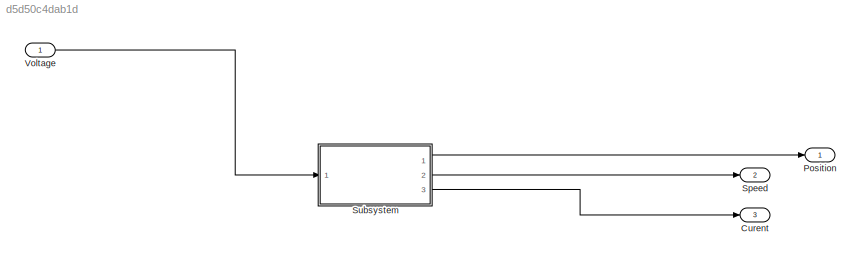
MODEL slx_d5d50c4dab1d
KIND model
CONFIG AbsTol = auto
CONFIG EnableMultiTasking = off
CONFIG FixedStep = auto
CONFIG MaxStep = auto
CONFIG MinStep = auto
CONFIG RelTol = 1e-3
CONFIG SampleTimeConstraint = Unconstrained
CONFIG SolverName = VariableStepAuto
CONFIG StartTime = 0.0
CONFIG StopTime = 10.0
BLOCK [Outport] Curent
  Port = 3
BLOCK [Outport] Position
BLOCK [Outport] Speed
  Port = 2
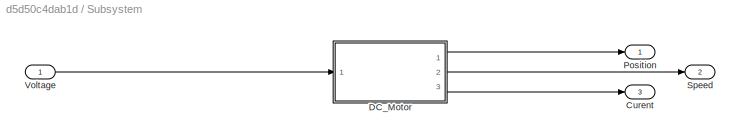
BLOCK [SubSystem] Subsystem
  Ports = [1, 3]
  RequestExecContextInheritance = off
BLOCK [Outport] Subsystem/Curent
  Port = 3
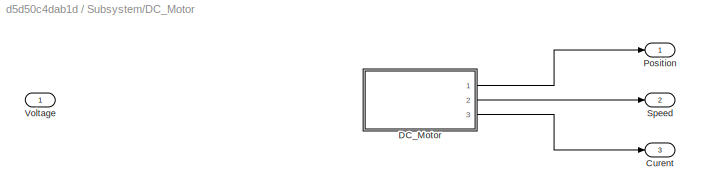
BLOCK [SubSystem] Subsystem/DC_Motor
  Ports = [1, 3]
  RequestExecContextInheritance = off
BLOCK [Outport] Subsystem/DC_Motor/Curent
  Port = 3
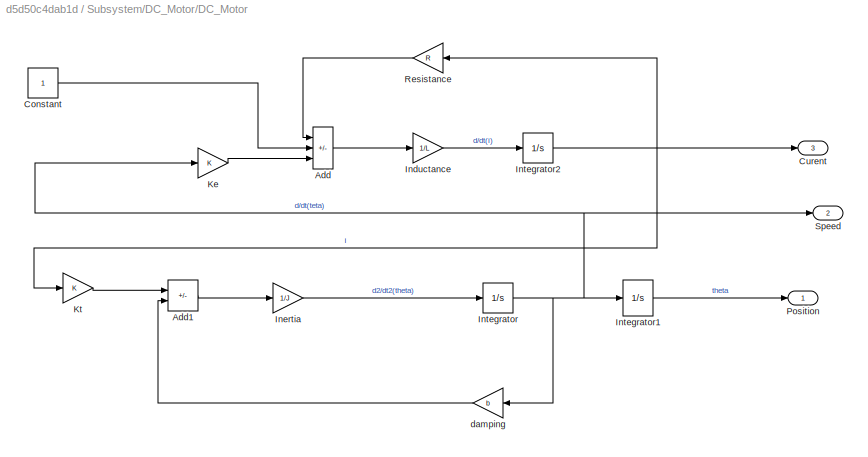
BLOCK [SubSystem] Subsystem/DC_Motor/DC_Motor
  Ports = [0, 3]
  RequestExecContextInheritance = off
BLOCK [Sum] Subsystem/DC_Motor/DC_Motor/Add
  IconShape = rectangular
  Inputs = -+-
  Ports = [3, 1]
BLOCK [Sum] Subsystem/DC_Motor/DC_Motor/Add1
  IconShape = rectangular
  Inputs = +-
  Ports = [2, 1]
BLOCK [Constant] Subsystem/DC_Motor/DC_Motor/Constant
BLOCK [Outport] Subsystem/DC_Motor/DC_Motor/Curent
  Port = 3
BLOCK [Gain] Subsystem/DC_Motor/DC_Motor/Inductance
  Gain = 1/L
BLOCK [Gain] Subsystem/DC_Motor/DC_Motor/Inertia
  Gain = 1/J
BLOCK [Integrator] Subsystem/DC_Motor/DC_Motor/Integrator
  Ports = [1, 1]
BLOCK [Integrator] Subsystem/DC_Motor/DC_Motor/Integrator1
  Ports = [1, 1]
BLOCK [Integrator] Subsystem/DC_Motor/DC_Motor/Integrator2
  Ports = [1, 1]
BLOCK [Gain] Subsystem/DC_Motor/DC_Motor/Ke
  Gain = K
BLOCK [Gain] Subsystem/DC_Motor/DC_Motor/Kt
  Gain = K
BLOCK [Outport] Subsystem/DC_Motor/DC_Motor/Position
BLOCK [Gain] Subsystem/DC_Motor/DC_Motor/Resistance
  Gain = R
  NameLocation = top
BLOCK [Outport] Subsystem/DC_Motor/DC_Motor/Speed
  Port = 2
BLOCK [Gain] Subsystem/DC_Motor/DC_Motor/damping
  Gain = b
  NameLocation = top
BLOCK [Outport] Subsystem/DC_Motor/Position
BLOCK [Outport] Subsystem/DC_Motor/Speed
  Port = 2
BLOCK [Inport] Subsystem/DC_Motor/Voltage
BLOCK [Outport] Subsystem/Position
BLOCK [Outport] Subsystem/Speed
  Port = 2
BLOCK [Inport] Subsystem/Voltage
BLOCK [Inport] Voltage
LINE Subsystem/DC_Motor/DC_Motor/Add1:1 -> Subsystem/DC_Motor/DC_Motor/Inertia:1
LINE Subsystem/DC_Motor/DC_Motor/Add:1 -> Subsystem/DC_Motor/DC_Motor/Inductance:1
LINE Subsystem/DC_Motor/DC_Motor/Constant:1 -> Subsystem/DC_Motor/DC_Motor/Add:2
LINE Subsystem/DC_Motor/DC_Motor/Inductance:1 -> Subsystem/DC_Motor/DC_Motor/Integrator2:1
LINE Subsystem/DC_Motor/DC_Motor/Inertia:1 -> Subsystem/DC_Motor/DC_Motor/Integrator:1
LINE Subsystem/DC_Motor/DC_Motor/Integrator1:1 -> Subsystem/DC_Motor/DC_Motor/Position:1
NET Subsystem/DC_Motor/DC_Motor/Integrator2:1 -> Subsystem/DC_Motor/DC_Motor/Curent:1, Subsystem/DC_Motor/DC_Motor/Kt:1, Subsystem/DC_Motor/DC_Motor/Resistance:1
NET Subsystem/DC_Motor/DC_Motor/Integrator:1 -> Subsystem/DC_Motor/DC_Motor/Integrator1:1, Subsystem/DC_Motor/DC_Motor/Ke:1, Subsystem/DC_Motor/DC_Motor/Speed:1, Subsystem/DC_Motor/DC_Motor/damping:1
LINE Subsystem/DC_Motor/DC_Motor/Ke:1 -> Subsystem/DC_Motor/DC_Motor/Add:3
LINE Subsystem/DC_Motor/DC_Motor/Kt:1 -> Subsystem/DC_Motor/DC_Motor/Add1:1
LINE Subsystem/DC_Motor/DC_Motor/Resistance:1 -> Subsystem/DC_Motor/DC_Motor/Add:1
LINE Subsystem/DC_Motor/DC_Motor/damping:1 -> Subsystem/DC_Motor/DC_Motor/Add1:2
LINE Subsystem/DC_Motor/DC_Motor:1 -> Subsystem/DC_Motor/Position:1
LINE Subsystem/DC_Motor/DC_Motor:2 -> Subsystem/DC_Motor/Speed:1
LINE Subsystem/DC_Motor/DC_Motor:3 -> Subsystem/DC_Motor/Curent:1
LINE Subsystem/DC_Motor:1 -> Subsystem/Position:1
LINE Subsystem/DC_Motor:2 -> Subsystem/Speed:1
LINE Subsystem/DC_Motor:3 -> Subsystem/Curent:1
LINE Subsystem/Voltage:1 -> Subsystem/DC_Motor:1
LINE Subsystem:1 -> Position:1
LINE Subsystem:2 -> Speed:1
LINE Subsystem:3 -> Curent:1
LINE Voltage:1 -> Subsystem:1
note: NET lines group one-source signal fan-out (src -> all destinations, sorted); 1:1 wires keep LINE
